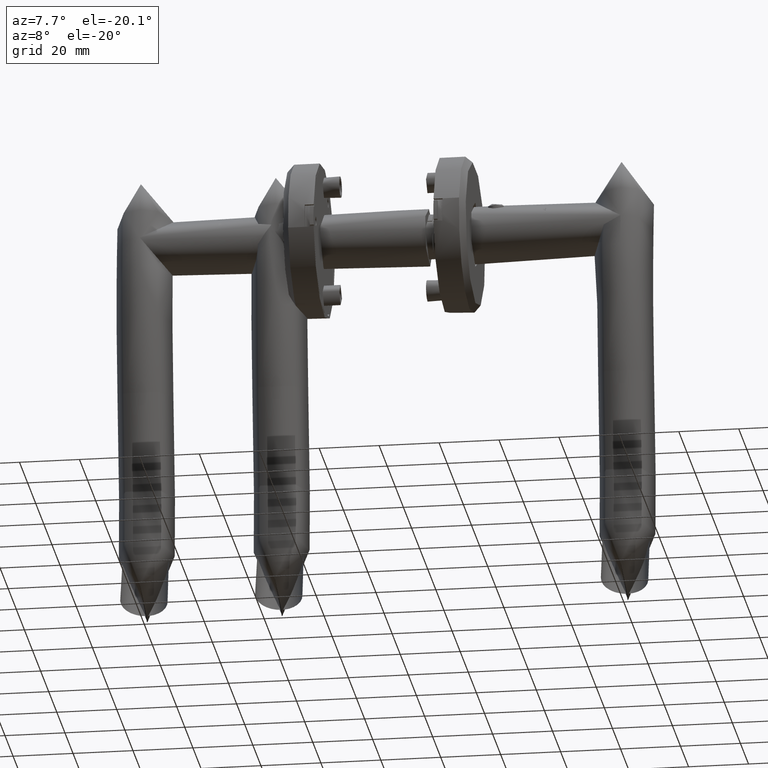
[diagram: clean part render]
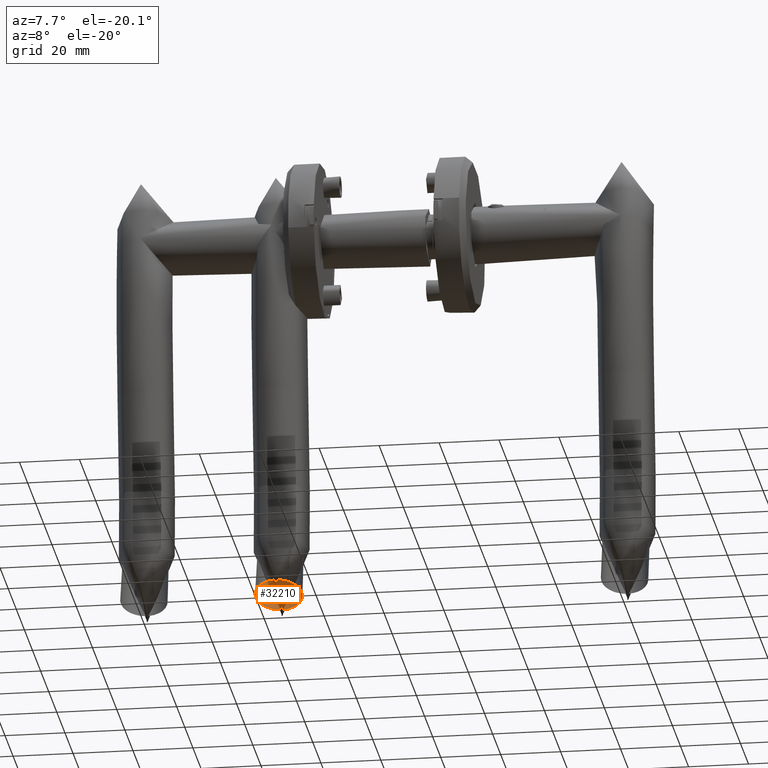
[diagram: same view with one face highlighted and labeled with its STEP entity id]
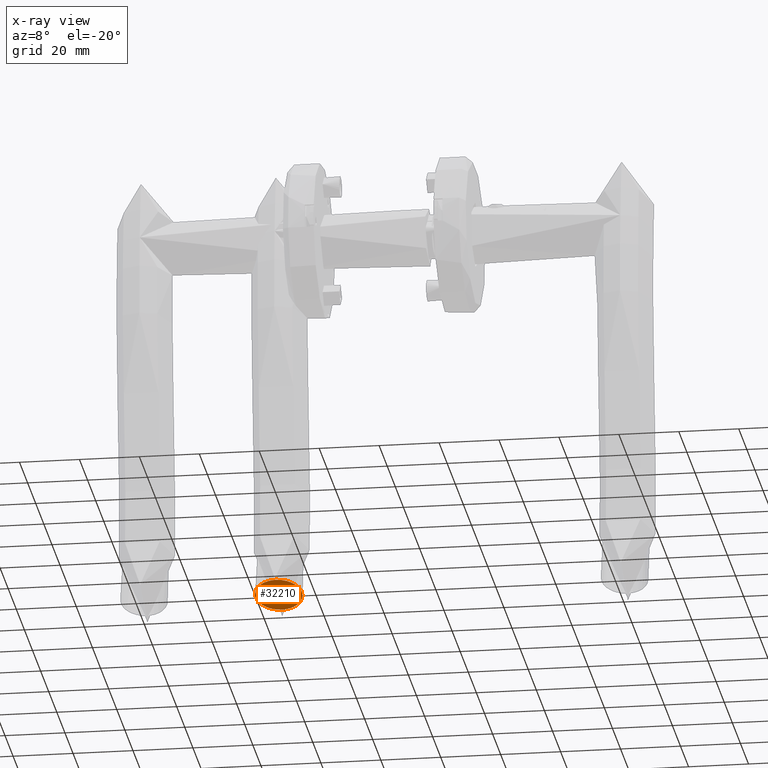
[diagram: x-ray of the same camera — body ghosted, the highlighted face saturated]
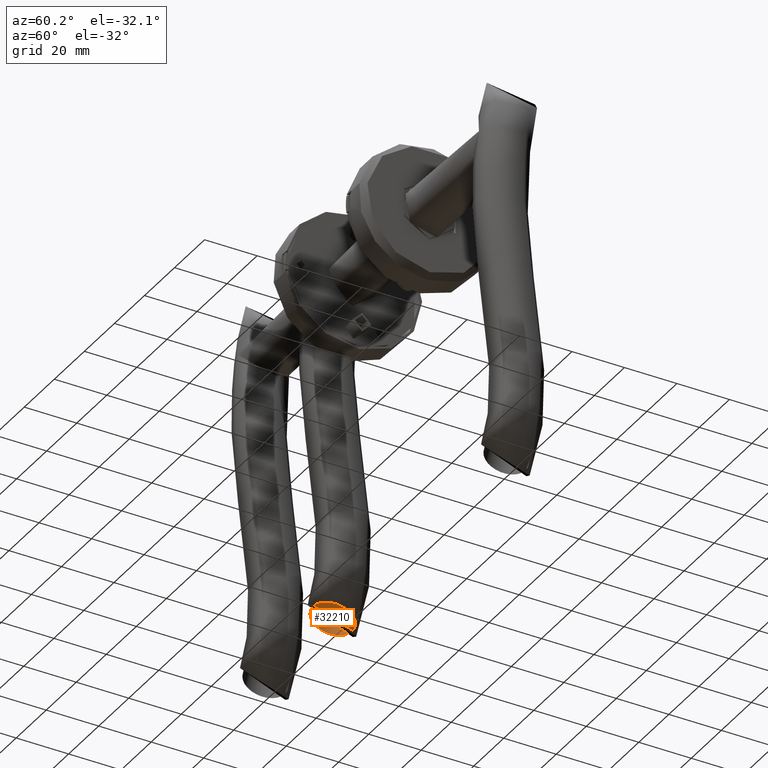
[diagram: same view with one face highlighted and labeled with its STEP entity id]
A machine part, auxiliary view. The second image highlights one B-rep face of the part: STEP entity #32210.
The next image is the same camera in x-ray: the body ghosted, the highlighted face saturated — about 0% of this face is hidden behind the body in this view.
A second angle (auxiliary view) of the same face is appended — the face is thin or edge-on in the first view.
In plain terms, the highlighted planar face has unit normal (0, 0.3292, 0.9443).
Its self-contained STEP definition (entity closure, byte-faithful):
#20 = CARTESIAN_POINT ( 'NONE',  ( -133.1586724870100200, 0.6418823801183842800, 50.19999999999999600 ) ) ;
#1865 = CARTESIAN_POINT ( 'NONE',  ( -132.4864452857191600, -1.286493408119544900, 57.78927219320319600 ) ) ;
#2001 = CARTESIAN_POINT ( 'NONE',  ( -135.7198349343837800, 7.988927610920360900, 49.16460210676455500 ) ) ;
#2143 = CARTESIAN_POINT ( 'NONE',  ( -135.7369166774362800, 8.037928930206732000, 50.70956492901070300 ) ) ;
#2291 = CARTESIAN_POINT ( 'NONE',  ( -133.8228586394058900, 2.547191318381251800, 57.78565645455533000 ) ) ;
#2998 = CARTESIAN_POINT ( 'NONE',  ( -134.6594806817042000, 4.947156221878737300, 56.58235761894611200 ) ) ;
#4992 = CARTESIAN_POINT ( 'NONE',  ( -130.8341442096854900, -6.026345326911439300, 53.67972251214543200 ) ) ;
#5130 = CARTESIAN_POINT ( 'NONE',  ( -130.5678921987417300, -6.790125683445173100, 50.20000000000001000 ) ) ;
#5271 = CARTESIAN_POINT ( 'NONE',  ( -134.7276335429855900, 5.142662037980348300, 43.95562775770309100 ) ) ;
#5410 = CARTESIAN_POINT ( 'NONE',  ( -134.8594927199780500, 5.520918145261983800, 56.09951847329213600 ) ) ;
#5541 = CARTESIAN_POINT ( 'NONE',  ( -135.3493120376063800, 6.926031938503112600, 54.34274437880389300 ) ) ;
#7972 = CARTESIAN_POINT ( 'NONE',  ( -130.6543572544705100, -6.542088829721010700, 48.17009494383089000 ) ) ;
#8107 = CARTESIAN_POINT ( 'NONE',  ( -133.3195564041984900, 1.103399929582942000, 42.34972562012659100 ) ) ;
#8240 = CARTESIAN_POINT ( 'NONE',  ( -135.4726370495041900, 7.279806624459558500, 53.66725574988014800 ) ) ;
#8379 = CARTESIAN_POINT ( 'NONE',  ( -135.6711480006020500, 7.849262473705164400, 51.97769657227115700 ) ) ;
#8506 = CARTESIAN_POINT ( 'NONE',  ( -133.8221733505888800, 2.545225473559484800, 42.60082502556630900 ) ) ;
#8642 = CARTESIAN_POINT ( 'NONE',  ( -134.0659709635619400, 3.244592314390548200, 57.54771368964261300 ) ) ;
#9356 = CARTESIAN_POINT ( 'NONE',  ( -132.3242726420907900, -1.751707845867261200, 57.64054389816454500 ) ) ;
#10913 = CARTESIAN_POINT ( 'NONE',  ( -132.1613616367291400, -2.219040375365904700, 42.93659272286129900 ) ) ;
#11342 = CARTESIAN_POINT ( 'NONE',  ( -131.2059006051791200, -4.959911194499223800, 45.01051988386654300 ) ) ;
#11476 = CARTESIAN_POINT ( 'NONE',  ( -130.6515597527071300, -6.550113846646107500, 52.24778384678526800 ) ) ;
#11601 = CARTESIAN_POINT ( 'NONE',  ( -132.9846120664381300, 0.1425662261800677300, 58.05051662795934000 ) ) ;
#11732 = CARTESIAN_POINT ( 'NONE',  ( -135.6047669639257300, 7.658839379133774500, 47.66953039076047100 ) ) ;
#11874 = CARTESIAN_POINT ( 'NONE',  ( -133.7409180797791400, 2.312133601354409600, 57.84805532174088700 ) ) ;
#12546 = CARTESIAN_POINT ( 'NONE',  ( -134.4451331618441800, 4.332271006324685200, 43.39767039365196400 ) ) ;
#13983 = CARTESIAN_POINT ( 'NONE',  ( -130.5678921987417000, -6.790125683445171300, 49.68133958477085300 ) ) ;
#14691 = CARTESIAN_POINT ( 'NONE',  ( -130.5678921987417600, -6.790125683445174000, 50.71866041522916600 ) ) ;
#14829 = CARTESIAN_POINT ( 'NONE',  ( -134.7281083296637100, 5.144024028588289900, 56.42763683574062800 ) ) ;
#14969 = CARTESIAN_POINT ( 'NONE',  ( -135.5445139562999100, 7.485995375125919600, 53.20447379339729800 ) ) ;
#15081 = EDGE_CURVE ( 'NONE', #27234, #27234, #35082, .T. ) ;
#15097 = CARTESIAN_POINT ( 'NONE',  ( -133.3254142203033400, 1.120203877305843400, 58.04947542988842500 ) ) ;
#15788 = CARTESIAN_POINT ( 'NONE',  ( -134.9220549811223300, 5.700386559239416500, 55.92680991337653000 ) ) ;
#15947 = PLANE ( 'NONE',  #19584 ) ;
#16371 = DIRECTION ( 'NONE',  ( 0.9442705194819734900, 0.3291704513428323500, 0.0000000000000000000 ) ) ;
#17133 = EDGE_LOOP ( 'NONE', ( #22148 ) ) ;
#17218 = CARTESIAN_POINT ( 'NONE',  ( -130.7035631329423200, -6.400935028592419600, 47.67689341390396900 ) ) ;
#17359 = CARTESIAN_POINT ( 'NONE',  ( -132.0089938294210000, -2.656128297359893400, 43.15535130719715800 ) ) ;
#17634 = CARTESIAN_POINT ( 'NONE',  ( -132.8148174018289500, -0.3445130225852527900, 42.40013833349476600 ) ) ;
#17779 = CARTESIAN_POINT ( 'NONE',  ( -130.7324446489829200, -6.318084444514248300, 47.43177062864816000 ) ) ;
#17918 = CARTESIAN_POINT ( 'NONE',  ( -135.6536695666100900, 7.799123192132286800, 48.15888283767980500 ) ) ;
#18047 = CARTESIAN_POINT ( 'NONE',  ( -132.2435457054753800, -1.983284119081259800, 57.55311140101368000 ) ) ;
#18176 = CARTESIAN_POINT ( 'NONE',  ( -134.2953910522796800, 3.902715257896991500, 43.15467783422062800 ) ) ;
#18318 = CARTESIAN_POINT ( 'NONE',  ( -131.8598690020876100, -3.083913287170624100, 57.01707486431404000 ) ) ;
#19017 = CARTESIAN_POINT ( 'NONE',  ( -130.9141310874392200, -5.796892013893560700, 54.13328278388399900 ) ) ;
#19584 = AXIS2_PLACEMENT_3D ( 'NONE', #20, #16371, #32441 ) ;
#20843 = CARTESIAN_POINT ( 'NONE',  ( -132.9824886073370200, 0.1364747929412404600, 42.35027665391480400 ) ) ;
#21108 = CARTESIAN_POINT ( 'NONE',  ( -135.6012839060835200, 7.648847750709678400, 52.72224577815013900 ) ) ;
#21249 = CARTESIAN_POINT ( 'NONE',  ( -135.2067506202618000, 6.517074989102045600, 45.40954336395536500 ) ) ;
#21386 = CARTESIAN_POINT ( 'NONE',  ( -135.3931169578989700, 7.051692351434701900, 54.12019920474833200 ) ) ;
#21515 = CARTESIAN_POINT ( 'NONE',  ( -131.4458388744709800, -4.271615409553893600, 56.11753109565316300 ) ) ;
#22148 = ORIENTED_EDGE ( 'NONE', *, *, #15081, .T. ) ;
#22228 = CARTESIAN_POINT ( 'NONE',  ( -135.3471915335926500, 6.919948982337335700, 46.04707403068422900 ) ) ;
#23648 = CARTESIAN_POINT ( 'NONE',  ( -130.9091498132594300, -5.811181481062253500, 46.26785361796692100 ) ) ;
#23787 = CARTESIAN_POINT ( 'NONE',  ( -132.4817310488379000, -1.300016842226819000, 42.61457577318844200 ) ) ;
#24348 = CARTESIAN_POINT ( 'NONE',  ( -131.2070181422930400, -4.956705386241433000, 55.39338236190875600 ) ) ;
#24480 = CARTESIAN_POINT ( 'NONE',  ( -134.4486899924810600, 4.342474262113494600, 57.01057590594744100 ) ) ;
#24609 = CARTESIAN_POINT ( 'NONE',  ( -135.2075677418985700, 6.519419014421909100, 54.98782927645444100 ) ) ;
#24745 = CARTESIAN_POINT ( 'NONE',  ( -134.5175527842067100, 4.540016610919289000, 43.52955508470962800 ) ) ;
#27147 = CARTESIAN_POINT ( 'NONE',  ( -130.6338945204919400, -6.600788984504341700, 48.41883783111894200 ) ) ;
#27234 = VERTEX_POINT ( 'NONE', #38491 ) ;
#27286 = CARTESIAN_POINT ( 'NONE',  ( -130.8297539757895700, -6.038939314083219900, 46.71875004871035500 ) ) ;
#27430 = CARTESIAN_POINT ( 'NONE',  ( -130.7980336100155200, -6.129933527401634700, 53.44824095684311500 ) ) ;
#27684 = CARTESIAN_POINT ( 'NONE',  ( -135.4706896086233900, 7.274220123591315500, 46.72068651085984900 ) ) ;
#27819 = CARTESIAN_POINT ( 'NONE',  ( -134.3003188576999800, 3.916851342606514100, 57.25195031708864900 ) ) ;
#28526 = CARTESIAN_POINT ( 'NONE',  ( -132.8159661333141300, -0.3412177290015393500, 57.99997370052736300 ) ) ;
#30074 = CARTESIAN_POINT ( 'NONE',  ( -130.5846499460877800, -6.742053790213964800, 49.17134954757086300 ) ) ;
#30357 = CARTESIAN_POINT ( 'NONE',  ( -131.0967261199626000, -5.273093156759328400, 45.41452212447684600 ) ) ;
#30635 = CARTESIAN_POINT ( 'NONE',  ( -130.7011348179056000, -6.407900982832575900, 52.73995297733173300 ) ) ;
#30768 = CARTESIAN_POINT ( 'NONE',  ( -135.1006130466080900, 6.212604823564118000, 55.38345758726272500 ) ) ;
#30907 = CARTESIAN_POINT ( 'NONE',  ( -134.2179322435420100, 3.680514057070040300, 43.04357601197165200 ) ) ;
#31042 = CARTESIAN_POINT ( 'NONE',  ( -135.3906449281983600, 7.044600995694525900, 46.26674029520852100 ) ) ;
#31752 = CARTESIAN_POINT ( 'NONE',  ( -131.0999747667742100, -5.263773968478969500, 54.99857454680569900 ) ) ;
#32210 = ADVANCED_FACE ( 'NONE', ( #36208 ), #15947, .T. ) ;
#32441 = DIRECTION ( 'NONE',  ( -0.3291704513428323500, 0.9442705194819734900, 0.0000000000000000000 ) ) ;
#33579 = CARTESIAN_POINT ( 'NONE',  ( -131.5744931653175900, -3.902552957090033500, 43.96147327960672900 ) ) ;
#33718 = CARTESIAN_POINT ( 'NONE',  ( -132.5646399605884400, -1.062181274517342200, 42.55134067107768900 ) ) ;
#33861 = CARTESIAN_POINT ( 'NONE',  ( -130.5846518727727500, -6.742048263254364600, 51.23194075540727300 ) ) ;
#33989 = CARTESIAN_POINT ( 'NONE',  ( -132.0084000097265000, -2.657831750476843200, 57.25790246562778000 ) ) ;
#34261 = CARTESIAN_POINT ( 'NONE',  ( -133.4931564514886300, 1.601395439714725200, 57.99827448152893100 ) ) ;
#34960 = CARTESIAN_POINT ( 'NONE',  ( -130.9582740344510200, -5.670261925025288400, 54.35643195396622900 ) ) ;
#35082 = B_SPLINE_CURVE_WITH_KNOTS ( 'NONE', 3,
 ( #36383, #13983, #30074, #27147, #7972, #17218, #17779, #27286, #23648, #30357, #11342, #39577, #33579, #36523, #36808, #17359, #10913, #39718, #23787, #33718, #17634, #20843, #8107, #40144, #8506, #40413, #30907, #18176, #12546, #24745, #5271, #37081, #41405, #21249, #22228, #31042, #27684, #37348, #11732, #17918, #2001, #37215, #2143, #40542, #8379, #40282, #21108, #14969, #8240, #21386, #5541, #24609, #30768, #15788, #5410, #14829, #2998, #24480, #27819, #8642, #38173, #2291, #11874, #34261, #15097, #11601, #28526, #37486, #1865, #9356, #18047, #33989, #18318, #40676, #21515, #24348, #31752, #34960, #19017, #4992, #27430, #30635, #11476, #33861, #14691, #5130 ),
 .UNSPECIFIED., .T., .F.,
 ( 4, 2, 2, 2, 2, 2, 2, 2, 1, 2, 2, 2, 2, 2, 2, 2, 2, 2, 2, 2, 2, 2, 2, 2, 1, 2, 2, 2, 2, 2, 2, 2, 2, 2, 2, 2, 2, 2, 2, 2, 2, 2, 2, 4 ),
 ( 0.0000000000000000000, 0.001533894265538027200, 0.002300841398307040600, 0.003067788531076053900, 0.004601682796614069100, 0.006135577062152085300, 0.007669471327690101400, 0.008436418460459099000, 0.009203365593228096700, 0.009970312725997092600, 0.01073725985876609000, 0.01227115412430408200, 0.01380504838984207200, 0.01533894265538006400, 0.01610588978814904800, 0.01687283692091803200, 0.01840673118645599900, 0.01994062545199396700, 0.02070757258476294300, 0.02147451971753191700, 0.02300841398306987000, 0.02454230824860782400, 0.02607620251414577800, 0.02684314964691475800, 0.02761009677968374500, 0.02837704391245273600, 0.02914399104522172300, 0.03067788531075971900, 0.03144483244352872000, 0.03221177957629772800, 0.03374567384183573700, 0.03451262097460475200, 0.03527956810737376000, 0.03681346237291182500, 0.03834735663844988900, 0.03911430377121891100, 0.03988125090398794000, 0.04141514516952597700, 0.04294903943506400700, 0.04448293370060204400, 0.04524988083337106600, 0.04601682796614009500, 0.04755072223167816600, 0.04908461649721623800 ),
 .UNSPECIFIED. ) ;
#36208 = FACE_OUTER_BOUND ( 'NONE', #17133, .T. ) ;
#36383 = CARTESIAN_POINT ( 'NONE',  ( -130.5678921987417300, -6.790125683445173100, 50.20000000000001000 ) ) ;
#36523 = CARTESIAN_POINT ( 'NONE',  ( -131.7863834838981300, -3.294716559919078900, 43.53110799565273200 ) ) ;
#36808 = CARTESIAN_POINT ( 'NONE',  ( -131.8597920106536500, -3.084134147642942000, 43.39749975378532600 ) ) ;
#37081 = CARTESIAN_POINT ( 'NONE',  ( -134.8581866463638100, 5.517171494233078700, 44.27993738216844800 ) ) ;
#37215 = CARTESIAN_POINT ( 'NONE',  ( -135.7367974492387100, 8.037586907793524900, 49.68488627099507200 ) ) ;
#37348 = CARTESIAN_POINT ( 'NONE',  ( -135.5073864294973600, 7.379489979887988900, 46.95601587149315700 ) ) ;
#37486 = CARTESIAN_POINT ( 'NONE',  ( -132.5682770285350800, -1.051747847016930600, 57.85114125681585100 ) ) ;
#38173 = CARTESIAN_POINT ( 'NONE',  ( -133.9854123770445500, 3.013498976488762500, 57.63555745402848600 ) ) ;
#38491 = CARTESIAN_POINT ( 'NONE',  ( -130.5678921987417000, -6.790125683445169500, 50.19999999999999600 ) ) ;
#39577 = CARTESIAN_POINT ( 'NONE',  ( -131.4443744541837900, -4.275816299699521900, 44.28640116164735500 ) ) ;
#39718 = CARTESIAN_POINT ( 'NONE',  ( -132.3199659435762500, -1.764062200357557700, 42.76390848884796700 ) ) ;
#40144 = CARTESIAN_POINT ( 'NONE',  ( -133.4907364133029800, 1.594453228755399900, 42.40064776654625700 ) ) ;
#40282 = CARTESIAN_POINT ( 'NONE',  ( -135.6503712656069600, 7.789661564003346900, 52.23012853759144000 ) ) ;
#40413 = CARTESIAN_POINT ( 'NONE',  ( -133.9832673694545000, 3.007345728458060500, 42.74894349893773400 ) ) ;
#40542 = CARTESIAN_POINT ( 'NONE',  ( -135.7206215482052000, 7.991184120393734600, 51.21874914206068800 ) ) ;
#40676 = CARTESIAN_POINT ( 'NONE',  ( -131.5790148248371700, -3.889581957517490400, 56.44875454294052700 ) ) ;
#41405 = CARTESIAN_POINT ( 'NONE',  ( -135.0995482782428200, 6.209550389688939900, 45.01222802417512300 ) ) ;